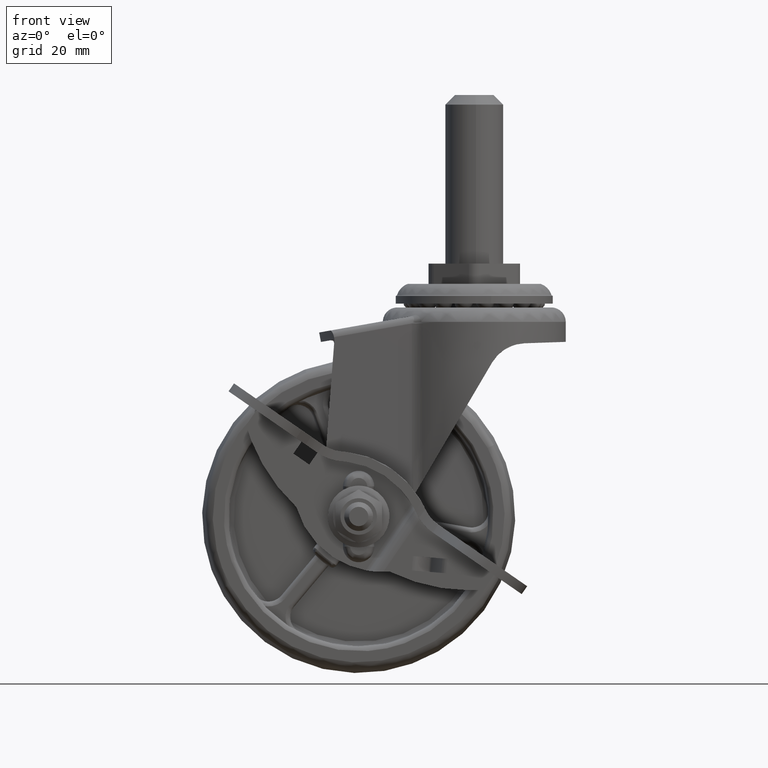
[diagram: clean part render]
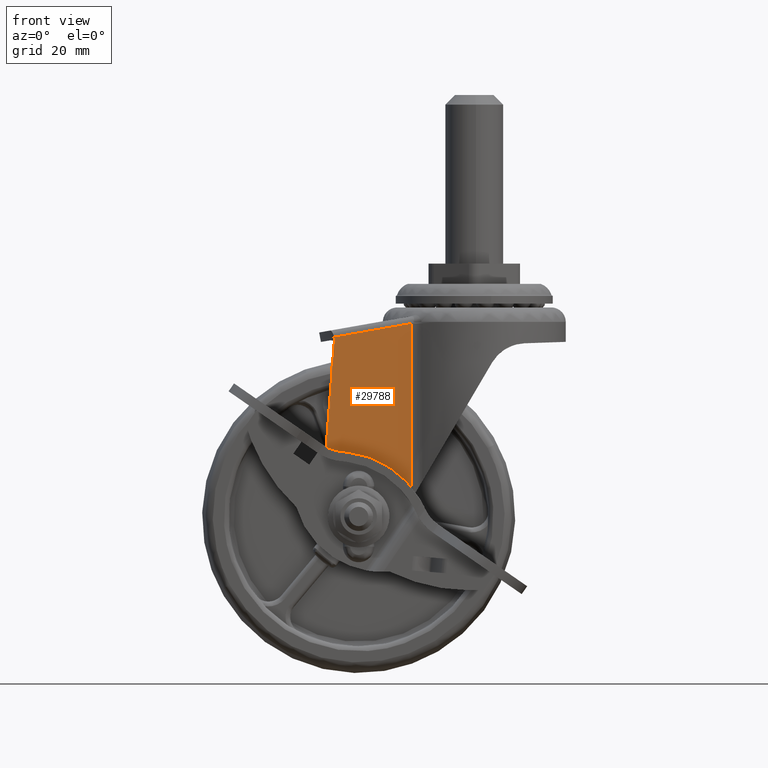
[diagram: same view with one face highlighted and labeled with its STEP entity id]
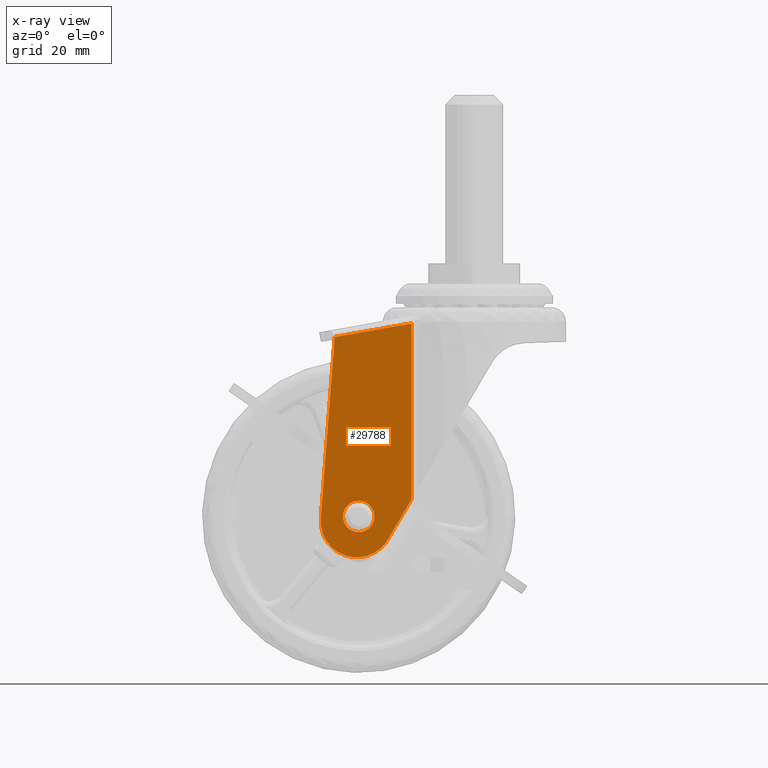
[diagram: x-ray of the same camera — body ghosted, the highlighted face saturated]
A machine part, front view. The second image highlights one B-rep face of the part: STEP entity #29788.
The next image is the same camera in x-ray: the body ghosted, the highlighted face saturated — about 0% of this face is hidden behind the body in this view.
In plain terms, the highlighted face is a freeform B-spline surface patch.
Its self-contained STEP definition (entity closure, byte-faithful):
#27708=CARTESIAN_POINT('',(3.243938094849651,-14.989471000000020,-0.198407753838437));
#27709=VERTEX_POINT('',#27708);
#27715=CARTESIAN_POINT('',(0.0,-14.989471000000020,3.250000000000000));
#27716=VERTEX_POINT('',#27715);
#27717=CARTESIAN_POINT('',(3.243938094849651,-14.989471000000018,-0.198407753838437));
#27718=CARTESIAN_POINT('',(3.250000000000000,-14.989471000000023,-0.099296480895981));
#27719=CARTESIAN_POINT('',(3.250000000000000,-14.989471000000020,0.0));
#27720=CARTESIAN_POINT('',(3.250000000000000,-14.989471000000016,3.250000000000000));
#27721=CARTESIAN_POINT('',(0.0,-14.989471000000020,3.250000000000000));
#27729=(BOUNDED_CURVE()B_SPLINE_CURVE(2,(#27717,#27718,#27719,#27720,#27721),.UNSPECIFIED.,.F.,.U.)B_SPLINE_CURVE_WITH_KNOTS((3,2,3),(0.239332962223343,0.250000000000000,0.500000000000000),.UNSPECIFIED.)CURVE()GEOMETRIC_REPRESENTATION_ITEM()RATIONAL_B_SPLINE_CURVE((0.976072041633285,0.987502787881562,1.0,0.707106781186547,1.0))REPRESENTATION_ITEM(''));
#27730=EDGE_CURVE('',#27709,#27716,#27729,.T.);
#27732=CARTESIAN_POINT('',(-3.243938094849651,-14.989471000000020,0.198407753838436));
#27733=VERTEX_POINT('',#27732);
#27734=CARTESIAN_POINT('',(0.0,-14.989471000000020,3.250000000000000));
#27735=CARTESIAN_POINT('',(-3.057294717112888,-14.989471000000027,3.250000000000001));
#27736=CARTESIAN_POINT('',(-3.243938094849651,-14.989471000000018,0.198407753838437));
#27744=(BOUNDED_CURVE()B_SPLINE_CURVE(2,(#27734,#27735,#27736),.UNSPECIFIED.,.F.,.U.)B_SPLINE_CURVE_WITH_KNOTS((3,3),(0.500000000000000,0.739332962223344),.UNSPECIFIED.)CURVE()GEOMETRIC_REPRESENTATION_ITEM()RATIONAL_B_SPLINE_CURVE((1.0,0.719603993304986,0.976072041633285))REPRESENTATION_ITEM(''));
#27745=EDGE_CURVE('',#27716,#27733,#27744,.T.);
#27819=CARTESIAN_POINT('',(0.0,-14.989471000000020,-3.250000000000000));
#27820=VERTEX_POINT('',#27819);
#27821=CARTESIAN_POINT('',(-3.243938094849651,-14.989471000000018,0.198407753838437));
#27822=CARTESIAN_POINT('',(-3.250000000000000,-14.989471000000023,0.099296480895981));
#27823=CARTESIAN_POINT('',(-3.250000000000000,-14.989471000000020,0.0));
#27824=CARTESIAN_POINT('',(-3.250000000000000,-14.989471000000016,-3.250000000000000));
#27825=CARTESIAN_POINT('',(0.0,-14.989471000000020,-3.250000000000000));
#27833=(BOUNDED_CURVE()B_SPLINE_CURVE(2,(#27821,#27822,#27823,#27824,#27825),.UNSPECIFIED.,.F.,.U.)B_SPLINE_CURVE_WITH_KNOTS((3,2,3),(0.739332962223344,0.750000000000000,1.0),.UNSPECIFIED.)CURVE()GEOMETRIC_REPRESENTATION_ITEM()RATIONAL_B_SPLINE_CURVE((0.976072041633285,0.987502787881562,1.0,0.707106781186547,1.0))REPRESENTATION_ITEM(''));
#27834=EDGE_CURVE('',#27733,#27820,#27833,.T.);
#27836=CARTESIAN_POINT('',(0.0,-14.989471000000020,-3.250000000000000));
#27837=CARTESIAN_POINT('',(3.057294717112886,-14.989471000000027,-3.250000000000000));
#27838=CARTESIAN_POINT('',(3.243938094849651,-14.989471000000018,-0.198407753838437));
#27846=(BOUNDED_CURVE()B_SPLINE_CURVE(2,(#27836,#27837,#27838),.UNSPECIFIED.,.F.,.U.)B_SPLINE_CURVE_WITH_KNOTS((3,3),(0.0,0.239332962223343),.UNSPECIFIED.)CURVE()GEOMETRIC_REPRESENTATION_ITEM()RATIONAL_B_SPLINE_CURVE((1.0,0.719603993304986,0.976072041633285))REPRESENTATION_ITEM(''));
#27847=EDGE_CURVE('',#27820,#27709,#27846,.T.);
#28742=CARTESIAN_POINT('',(-5.031762965749939,-14.989471000000020,36.729751717695351));
#28743=VERTEX_POINT('',#28742);
#28929=CARTESIAN_POINT('',(11.023097783363079,-14.989471000000000,3.622461012426360));
#28930=VERTEX_POINT('',#28929);
#28948=CARTESIAN_POINT('',(11.023097783362960,-14.989471000000000,40.068369961891797));
#28949=VERTEX_POINT('',#28948);
#28963=CARTESIAN_POINT('',(11.023097783363079,-14.989471000000000,3.622461012426360));
#28964=CARTESIAN_POINT('',(11.023097783362950,-14.989471000000000,40.068369961893012));
#28965=QUASI_UNIFORM_CURVE('',1,(#28963,#28964),.UNSPECIFIED.,.F.,.U.);
#28966=EDGE_CURVE('',#28930,#28949,#28965,.T.);
#28976=CARTESIAN_POINT('',(-7.878093303800609,-14.989471000000020,-0.427155822215347));
#28977=VERTEX_POINT('',#28976);
#28978=CARTESIAN_POINT('',(-5.031762965749939,-14.989471000000020,36.729751717695351));
#28979=CARTESIAN_POINT('',(-7.878093303800609,-14.989471000000020,-0.427155822215347));
#28980=QUASI_UNIFORM_CURVE('',1,(#28978,#28979),.UNSPECIFIED.,.F.,.U.);
#28981=EDGE_CURVE('',#28743,#28977,#28980,.T.);
#29110=CARTESIAN_POINT('',(6.063617999999909,-14.989471000000020,-4.804157000000120));
#29111=VERTEX_POINT('',#29110);
#29112=CARTESIAN_POINT('',(6.063617999999909,-14.989471000000020,-4.804157000000120));
#29113=CARTESIAN_POINT('',(11.023097783363079,-14.989471000000000,3.622461012426360));
#29114=QUASI_UNIFORM_CURVE('',1,(#29112,#29113),.UNSPECIFIED.,.F.,.U.);
#29115=EDGE_CURVE('',#29111,#28930,#29114,.T.);
#29240=CARTESIAN_POINT('',(-7.878093303800609,-14.989471000000020,-0.427155822215347));
#29241=CARTESIAN_POINT('',(-7.940762069852705,-14.989471000000020,-1.237994670678394));
#29242=CARTESIAN_POINT('',(-7.834629799421376,-14.989471000000060,-2.455932656170566));
#29243=CARTESIAN_POINT('',(-7.292835569471762,-14.989471000000020,-4.050443161861211));
#29244=CARTESIAN_POINT('',(-6.736376160473778,-14.989471000000030,-5.067499801649626));
#29245=CARTESIAN_POINT('',(-5.954363296416172,-14.989470999999909,-6.090305053531938));
#29246=CARTESIAN_POINT('',(-5.051884495520147,-14.989471000000229,-6.940196130460989));
#29247=CARTESIAN_POINT('',(-3.941264828540486,-14.989470999999931,-7.646534048460095));
#29248=CARTESIAN_POINT('',(-2.758866569285181,-14.989471000000069,-8.159256354062839));
#29249=CARTESIAN_POINT('',(-1.477334932082167,-14.989471000000011,-8.467470284552341));
#29250=CARTESIAN_POINT('',(-0.030474221805699,-14.989471000000030,-8.535710250565611));
#29251=CARTESIAN_POINT('',(1.404933615035111,-14.989471000000011,-8.330953169239331));
#29252=CARTESIAN_POINT('',(2.597388148559555,-14.989471000000000,-7.907622057379324));
#29253=CARTESIAN_POINT('',(3.754256465595350,-14.989471000000160,-7.285786322305689));
#29254=CARTESIAN_POINT('',(4.946443592295193,-14.989470999999581,-6.368465318629913));
#29255=CARTESIAN_POINT('',(5.717882255122180,-14.989471000000391,-5.392058903878986));
#29256=CARTESIAN_POINT('',(6.063617999999909,-14.989471000000020,-4.804157000000120));
#29257=B_SPLINE_CURVE_WITH_KNOTS('',3,(#29240,#29241,#29242,#29243,#29244,#29245,#29246,#29247,#29248,#29249,#29250,#29251,#29252,#29253,#29254,#29255,#29256),.UNSPECIFIED.,.F.,.U.,(4,1,1,1,1,1,1,1,1,1,1,1,1,1,4),(0.000000144116139,2.439515011776678,3.619942624712792,5.036442827172168,5.902098062542754,7.476003326466222,8.735117248132079,9.836805284564877,11.331929075865551,12.669783301210630,14.164973367314589,15.660186762051611,16.447129161001040,18.099714873658371,20.145761777701910),.UNSPECIFIED.);
#29258=EDGE_CURVE('',#28977,#29111,#29257,.T.);
#29759=CARTESIAN_POINT('',(-8.844537740127652,-14.989471000000000,42.494122534976754));
#29760=CARTESIAN_POINT('',(-8.844537740127652,-14.989471000000000,-10.921000874945300));
#29761=CARTESIAN_POINT('',(11.968275068283630,-14.989471000000000,42.494122534976754));
#29762=CARTESIAN_POINT('',(11.968275068283630,-14.989471000000000,-10.921000874945300));
#29763=B_SPLINE_SURFACE_WITH_KNOTS('',1,1,((#29759,#29761),(#29760,#29762)),.UNSPECIFIED.,.F.,.F.,.U.,(2,2),(2,2),(0.0,53.415123409922053),(0.0,20.812812808411280),.UNSPECIFIED.);
#29764=ORIENTED_EDGE('',*,*,#29115,.T.);
#29765=ORIENTED_EDGE('',*,*,#28966,.T.);
#29766=CARTESIAN_POINT('',(-5.118587997674800,-14.989471000000000,37.222155320005299));
#29767=VERTEX_POINT('',#29766);
#29768=CARTESIAN_POINT('',(11.023097783362960,-14.989471000000000,40.068369961891797));
#29769=CARTESIAN_POINT('',(-5.118587997674800,-14.989471000000000,37.222155320005299));
#29770=QUASI_UNIFORM_CURVE('',1,(#29768,#29769),.UNSPECIFIED.,.F.,.U.);
#29771=EDGE_CURVE('',#28949,#29767,#29770,.T.);
#29772=ORIENTED_EDGE('',*,*,#29771,.T.);
#29773=CARTESIAN_POINT('',(-5.031762965749939,-14.989471000000020,36.729751717695351));
#29774=CARTESIAN_POINT('',(-5.118587997674800,-14.989471000000000,37.222155320005299));
#29775=QUASI_UNIFORM_CURVE('',1,(#29773,#29774),.UNSPECIFIED.,.F.,.U.);
#29776=EDGE_CURVE('',#28743,#29767,#29775,.T.);
#29777=ORIENTED_EDGE('',*,*,#29776,.F.);
#29778=ORIENTED_EDGE('',*,*,#28981,.T.);
#29779=ORIENTED_EDGE('',*,*,#29258,.T.);
#29780=EDGE_LOOP('',(#29764,#29765,#29772,#29777,#29778,#29779));
#29781=FACE_OUTER_BOUND('',#29780,.T.);
#29782=ORIENTED_EDGE('',*,*,#27745,.F.);
#29783=ORIENTED_EDGE('',*,*,#27730,.F.);
#29784=ORIENTED_EDGE('',*,*,#27847,.F.);
#29785=ORIENTED_EDGE('',*,*,#27834,.F.);
#29786=EDGE_LOOP('',(#29782,#29783,#29784,#29785));
#29787=FACE_BOUND('',#29786,.T.);
#29788=ADVANCED_FACE('',(#29781,#29787),#29763,.T.);